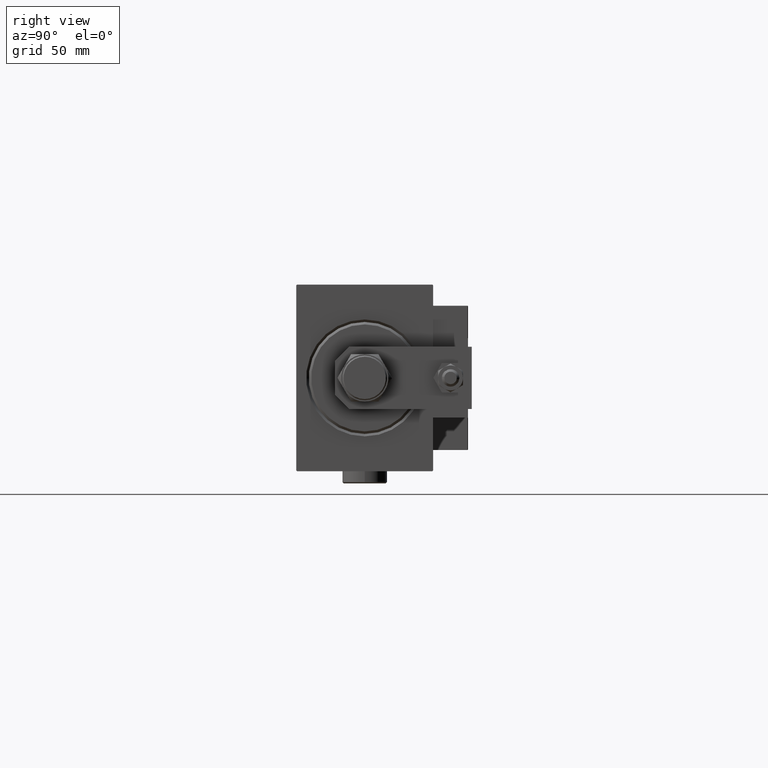
[diagram: clean part render]
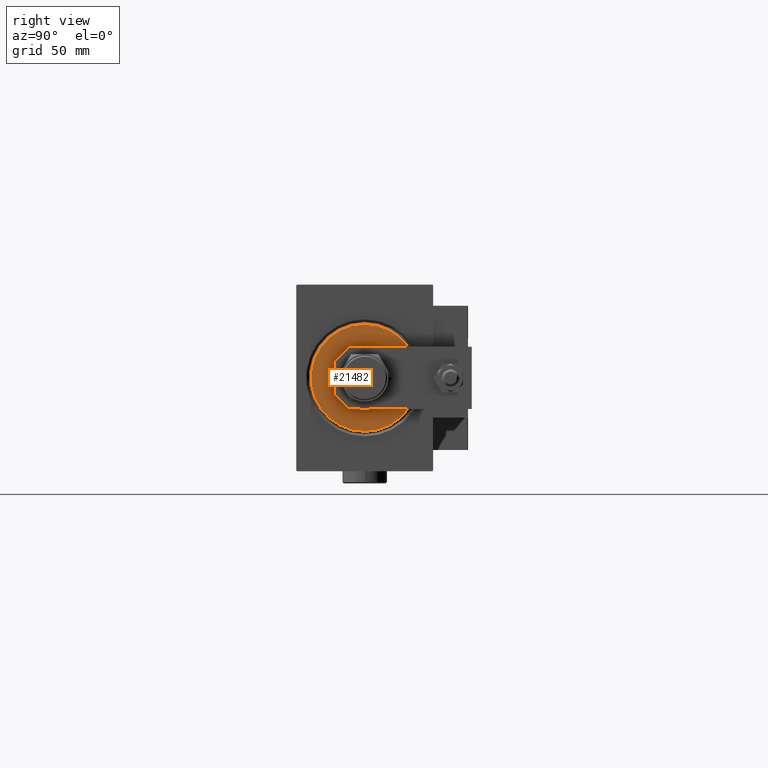
[diagram: same view with one face highlighted and labeled with its STEP entity id]
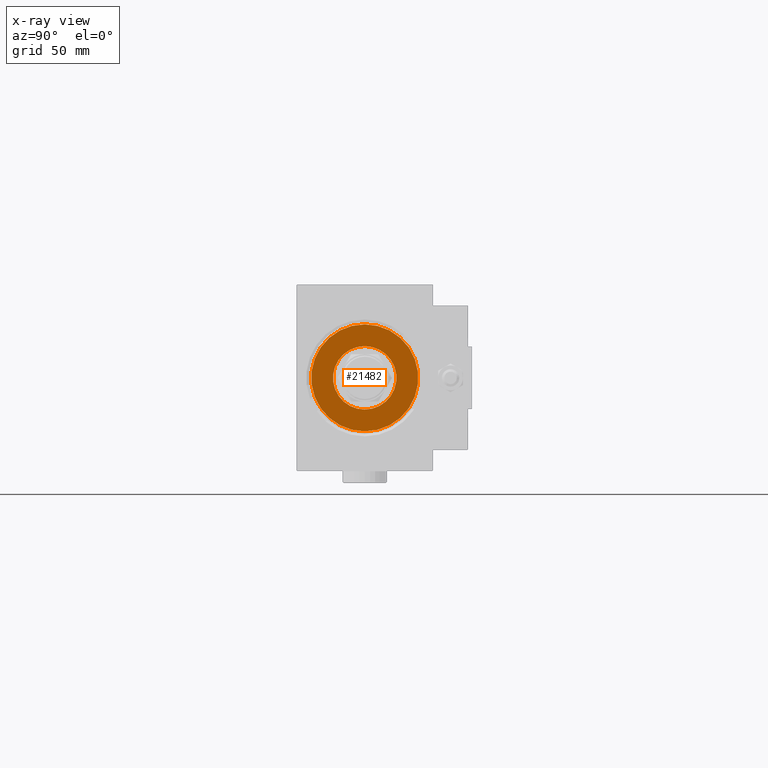
[diagram: x-ray of the same camera — body ghosted, the highlighted face saturated]
A machine part, right view. The second image highlights one B-rep face of the part: STEP entity #21482.
The next image is the same camera in x-ray: the body ghosted, the highlighted face saturated — about 0% of this face is hidden behind the body in this view.
In plain terms, the highlighted planar face has unit normal (1, 0, 0).
Its self-contained STEP definition (entity closure, byte-faithful):
#919 = CARTESIAN_POINT ( 'NONE',  ( 3.000000000000000000, 1.561424668912874914E-15, -12.75000000000000000 ) ) ;
#1005 = VERTEX_POINT ( 'NONE', #9176 ) ;
#1663 = CIRCLE ( 'NONE', #14480, 12.75000000000000000 ) ;
#1679 = VERTEX_POINT ( 'NONE', #30980 ) ;
#4303 = AXIS2_PLACEMENT_3D ( 'NONE', #14481, #10489, #26817 ) ;
#4853 = EDGE_CURVE ( 'NONE', #29367, #1005, #1663, .T. ) ;
#7232 = CARTESIAN_POINT ( 'NONE',  ( 3.000000000000000000, 0.000000000000000000, 0.000000000000000000 ) ) ;
#9176 = CARTESIAN_POINT ( 'NONE',  ( 3.000000000000000000, 0.000000000000000000, 12.75000000000000000 ) ) ;
#10428 = DIRECTION ( 'NONE',  ( 0.000000000000000000, 0.000000000000000000, -1.000000000000000000 ) ) ;
#10489 = DIRECTION ( 'NONE',  ( 1.000000000000000000, -0.000000000000000000, 0.000000000000000000 ) ) ;
#12341 = DIRECTION ( 'NONE',  ( 1.000000000000000000, -0.000000000000000000, 0.000000000000000000 ) ) ;
#14480 = AXIS2_PLACEMENT_3D ( 'NONE', #21936, #18454, #10428 ) ;
#14481 = CARTESIAN_POINT ( 'NONE',  ( 3.000000000000000000, 0.000000000000000000, 0.000000000000000000 ) ) ;
#15565 = CIRCLE ( 'NONE', #50587, 21.50000000000000000 ) ;
#16830 = AXIS2_PLACEMENT_3D ( 'NONE', #49000, #12341, #32942 ) ;
#16857 = CIRCLE ( 'NONE', #24546, 12.75000000000000000 ) ;
#18454 = DIRECTION ( 'NONE',  ( -1.000000000000000000, 0.000000000000000000, -0.000000000000000000 ) ) ;
#21482 = ADVANCED_FACE ( 'NONE', ( #49519, #40978 ), #32677, .T. ) ;
#21936 = CARTESIAN_POINT ( 'NONE',  ( 3.000000000000000000, 0.000000000000000000, 0.000000000000000000 ) ) ;
#23968 = DIRECTION ( 'NONE',  ( 0.000000000000000000, 0.000000000000000000, -1.000000000000000000 ) ) ;
#24546 = AXIS2_PLACEMENT_3D ( 'NONE', #36254, #44295, #23968 ) ;
#25626 = VERTEX_POINT ( 'NONE', #29071 ) ;
#26161 = EDGE_LOOP ( 'NONE', ( #33149, #39839 ) ) ;
#26817 = DIRECTION ( 'NONE',  ( 0.000000000000000000, 0.000000000000000000, -1.000000000000000000 ) ) ;
#27386 = CIRCLE ( 'NONE', #4303, 21.50000000000000000 ) ;
#29071 = CARTESIAN_POINT ( 'NONE',  ( 3.000000000000000000, 2.694222958124177204E-15, -21.50000000000000000 ) ) ;
#29367 = VERTEX_POINT ( 'NONE', #919 ) ;
#29987 = EDGE_CURVE ( 'NONE', #1005, #29367, #16857, .T. ) ;
#30192 = ORIENTED_EDGE ( 'NONE', *, *, #29987, .T. ) ;
#30980 = CARTESIAN_POINT ( 'NONE',  ( 3.000000000000000000, 0.000000000000000000, 21.50000000000000000 ) ) ;
#32677 = PLANE ( 'NONE',  #16830 ) ;
#32942 = DIRECTION ( 'NONE',  ( 0.000000000000000000, 0.000000000000000000, -1.000000000000000000 ) ) ;
#33149 = ORIENTED_EDGE ( 'NONE', *, *, #35552, .T. ) ;
#35552 = EDGE_CURVE ( 'NONE', #1679, #25626, #27386, .T. ) ;
#35854 = DIRECTION ( 'NONE',  ( 0.000000000000000000, 0.000000000000000000, -1.000000000000000000 ) ) ;
#36254 = CARTESIAN_POINT ( 'NONE',  ( 3.000000000000000000, 0.000000000000000000, 0.000000000000000000 ) ) ;
#37202 = ORIENTED_EDGE ( 'NONE', *, *, #4853, .T. ) ;
#39839 = ORIENTED_EDGE ( 'NONE', *, *, #50225, .T. ) ;
#40978 = FACE_BOUND ( 'NONE', #48922, .T. ) ;
#43897 = DIRECTION ( 'NONE',  ( 1.000000000000000000, -0.000000000000000000, 0.000000000000000000 ) ) ;
#44295 = DIRECTION ( 'NONE',  ( -1.000000000000000000, 0.000000000000000000, -0.000000000000000000 ) ) ;
#48922 = EDGE_LOOP ( 'NONE', ( #30192, #37202 ) ) ;
#49000 = CARTESIAN_POINT ( 'NONE',  ( 3.000000000000000000, 0.000000000000000000, 0.000000000000000000 ) ) ;
#49519 = FACE_OUTER_BOUND ( 'NONE', #26161, .T. ) ;
#50225 = EDGE_CURVE ( 'NONE', #25626, #1679, #15565, .T. ) ;
#50587 = AXIS2_PLACEMENT_3D ( 'NONE', #7232, #43897, #35854 ) ;